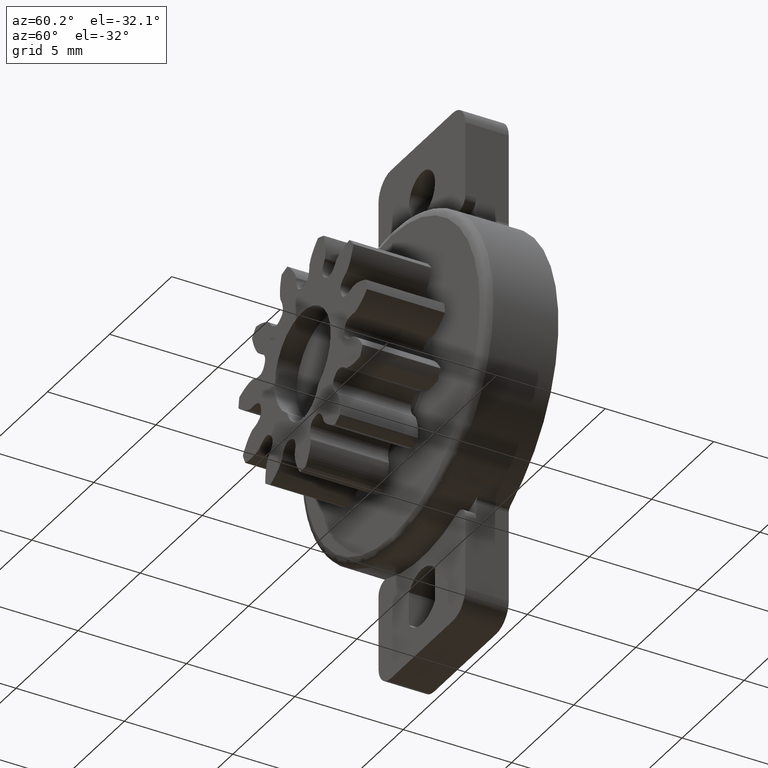
[diagram: clean part render]
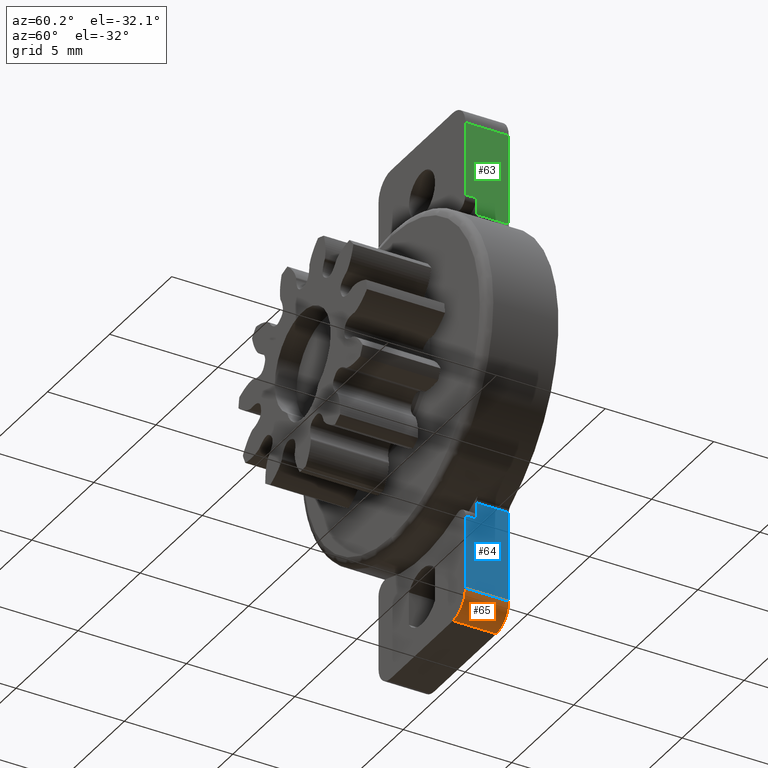
[diagram: same view with three faces highlighted in distinct colors, each labeled with its STEP entity id]
A machine part, auxiliary view with three faces highlighted in distinct colors.
Their STEP definitions:

[orange] entity #65 — the highlighted cylindrical surface (edge-blend (fillet) strip) has radius 1 mm, axis along (-0, 1, 0).
#65=ADVANCED_FACE('',(#941),#940,.T.);
#940=CYLINDRICAL_SURFACE('',#7266,1.00000009537E+00);
#941=FACE_OUTER_BOUND('',#7267,.T.);
#7263=CARTESIAN_POINT('',(2.50000000000E+00,9.98500000000E+02,-1.10000000000E+01));
#7264=DIRECTION('',(-0.00000000000E+00,1.00000000000E+00,0.00000000000E+00));
#7265=DIRECTION('',(-0.00000000000E+00,-0.00000000000E+00,1.00000000000E+00));
#7266=AXIS2_PLACEMENT_3D('',#7263,#7264,#7265);
#7267=EDGE_LOOP('',(#10604,#10605,#10606,#10607));
#10604=ORIENTED_EDGE('',*,*,#14368,.T.);
#10605=ORIENTED_EDGE('',*,*,#14287,.F.);
#10606=ORIENTED_EDGE('',*,*,#14369,.F.);
#10607=ORIENTED_EDGE('',*,*,#14334,.T.);
#14287=EDGE_CURVE('',#16267,#16274,#16275,.T.);
#14334=EDGE_CURVE('',#16595,#16588,#16596,.T.);
#14368=EDGE_CURVE('',#16588,#16274,#16816,.T.);
#14369=EDGE_CURVE('',#16595,#16267,#16822,.T.);
#16267=VERTEX_POINT('',#28957);
#16274=VERTEX_POINT('',#28961);
#16275=CIRCLE('',#28965,1.00000009537E+00);
#16588=VERTEX_POINT('',#29165);
#16595=VERTEX_POINT('',#29169);
#16596=CIRCLE('',#29173,1.00000009537E+00);
#16816=LINE('',#29302,#29303);
#16822=LINE('',#29305,#29306);
#28957=CARTESIAN_POINT('',(2.50000000000E+00,-2.00000000000E+00,-1.20000000000E+01));
#28961=CARTESIAN_POINT('',(3.50000009537E+00,-2.00000000000E+00,-1.09999999476E+01));
#28962=CARTESIAN_POINT('',(2.50000000000E+00,-2.00000000000E+00,-1.10000000000E+01));
#28963=DIRECTION('',(0.00000000000E+00,-1.00000000000E+00,0.00000000000E+00));
#28964=DIRECTION('',(-0.00000000000E+00,-0.00000000000E+00,1.00000000000E+00));
#28965=AXIS2_PLACEMENT_3D('',#28962,#28963,#28964);
#29165=CARTESIAN_POINT('',(3.50000009537E+00,0.00000000000E+00,-1.09999999476E+01));
#29169=CARTESIAN_POINT('',(2.50000000000E+00,0.00000000000E+00,-1.20000000000E+01));
#29170=CARTESIAN_POINT('',(2.50000000000E+00,0.00000000000E+00,-1.10000000000E+01));
#29171=DIRECTION('',(0.00000000000E+00,-1.00000000000E+00,0.00000000000E+00));
#29172=DIRECTION('',(-0.00000000000E+00,-0.00000000000E+00,-1.00000000000E+00));
#29173=AXIS2_PLACEMENT_3D('',#29170,#29171,#29172);
#29302=CARTESIAN_POINT('',(3.50000009537E+00,0.00000000000E+00,-1.09999999476E+01));
#29303=VECTOR('',#29304,2.00000000000E+00);
#29304=DIRECTION('',(0.00000000000E+00,-1.00000000000E+00,0.00000000000E+00));
#29305=CARTESIAN_POINT('',(2.50000000000E+00,0.00000000000E+00,-1.20000000000E+01));
#29306=VECTOR('',#29307,2.00000000000E+00);
#29307=DIRECTION('',(0.00000000000E+00,-1.00000000000E+00,0.00000000000E+00));

[blue] entity #64 — the highlighted planar face has unit normal (1, 0, 0).
#64=ADVANCED_FACE('',(#931),#930,.T.);
#930=PLANE('',#7261);
#931=FACE_OUTER_BOUND('',#7262,.T.);
#7258=CARTESIAN_POINT('',(3.50000000000E+00,-2.20000000000E+00,-6.39293090717E+00));
#7259=DIRECTION('',(1.00000000000E+00,0.00000000000E+00,0.00000000000E+00));
#7260=DIRECTION('',(0.00000000000E+00,0.00000000000E+00,-1.00000000000E+00));
#7261=AXIS2_PLACEMENT_3D('',#7258,#7259,#7260);
#7262=EDGE_LOOP('',(#10598,#10599,#10600,#10601,#10602,#10603));
#10598=ORIENTED_EDGE('',*,*,#14333,.T.);
#10599=ORIENTED_EDGE('',*,*,#14359,.T.);
#10600=ORIENTED_EDGE('',*,*,#14309,.F.);
#10601=ORIENTED_EDGE('',*,*,#14324,.T.);
#10602=ORIENTED_EDGE('',*,*,#14288,.F.);
#10603=ORIENTED_EDGE('',*,*,#14368,.F.);
#14288=EDGE_CURVE('',#16274,#16281,#16282,.T.);
#14309=EDGE_CURVE('',#16418,#16376,#16425,.T.);
#14324=EDGE_CURVE('',#16418,#16281,#16525,.T.);
#14333=EDGE_CURVE('',#16588,#16581,#16589,.T.);
#14359=EDGE_CURVE('',#16581,#16376,#16762,.T.);
#14368=EDGE_CURVE('',#16588,#16274,#16816,.T.);
#16274=VERTEX_POINT('',#28961);
#16281=VERTEX_POINT('',#28966);
#16282=LINE('',#28967,#28968);
#16376=VERTEX_POINT('',#29026);
#16418=VERTEX_POINT('',#29055);
#16425=LINE('',#29060,#29061);
#16525=LINE('',#29124,#29125);
#16581=VERTEX_POINT('',#29160);
#16588=VERTEX_POINT('',#29165);
#16589=LINE('',#29166,#29167);
#16762=LINE('',#29275,#29276);
#16816=LINE('',#29302,#29303);
#28961=CARTESIAN_POINT('',(3.50000009537E+00,-2.00000000000E+00,-1.09999999476E+01));
#28966=CARTESIAN_POINT('',(3.50000000000E+00,-2.00000000000E+00,-7.58711560000E+00));
#28967=CARTESIAN_POINT('',(3.50000000000E+00,-2.00000000000E+00,-1.09999999476E+01));
#28968=VECTOR('',#28969,3.41288434764E+00);
#28969=DIRECTION('',(0.00000000000E+00,0.00000000000E+00,1.00000000000E+00));
#29026=CARTESIAN_POINT('',(3.50000000000E+00,-1.50000000000E+00,-6.81175536540E+00));
#29055=CARTESIAN_POINT('',(3.50000000000E+00,-1.50000000000E+00,-7.58711560000E+00));
#29060=CARTESIAN_POINT('',(3.50000000000E+00,-1.50000000000E+00,-7.58711560000E+00));
#29061=VECTOR('',#29062,7.75360234605E-01);
#29062=DIRECTION('',(0.00000000000E+00,0.00000000000E+00,1.00000000000E+00));
#29124=CARTESIAN_POINT('',(3.50000000000E+00,-1.50000000000E+00,-7.58711560000E+00));
#29125=VECTOR('',#29126,5.00000000000E-01);
#29126=DIRECTION('',(0.00000000000E+00,-1.00000000000E+00,0.00000000000E+00));
#29160=CARTESIAN_POINT('',(3.50000000000E+00,0.00000000000E+00,-6.81175536540E+00));
#29165=CARTESIAN_POINT('',(3.50000009537E+00,0.00000000000E+00,-1.09999999476E+01));
#29166=CARTESIAN_POINT('',(3.50000000000E+00,0.00000000000E+00,-1.09999999476E+01));
#29167=VECTOR('',#29168,4.18824458224E+00);
#29168=DIRECTION('',(0.00000000000E+00,0.00000000000E+00,1.00000000000E+00));
#29275=CARTESIAN_POINT('',(3.50000000000E+00,0.00000000000E+00,-6.81175536540E+00));
#29276=VECTOR('',#29277,1.50000000000E+00);
#29277=DIRECTION('',(0.00000000000E+00,-1.00000000000E+00,0.00000000000E+00));
#29302=CARTESIAN_POINT('',(3.50000009537E+00,0.00000000000E+00,-1.09999999476E+01));
#29303=VECTOR('',#29304,2.00000000000E+00);
#29304=DIRECTION('',(0.00000000000E+00,-1.00000000000E+00,0.00000000000E+00));

[green] entity #63 — the highlighted planar face has unit normal (1, 0, 0).
#63=ADVANCED_FACE('',(#921),#920,.T.);
#920=PLANE('',#7256);
#921=FACE_OUTER_BOUND('',#7257,.T.);
#7253=CARTESIAN_POINT('',(3.50000000000E+00,-2.20000000000E+00,1.14188244635E+01));
#7254=DIRECTION('',(1.00000000000E+00,0.00000000000E+00,0.00000000000E+00));
#7255=DIRECTION('',(0.00000000000E+00,0.00000000000E+00,-1.00000000000E+00));
#7256=AXIS2_PLACEMENT_3D('',#7253,#7254,#7255);
#7257=EDGE_LOOP('',(#10592,#10593,#10594,#10595,#10596,#10597));
#10592=ORIENTED_EDGE('',*,*,#14347,.F.);
#10593=ORIENTED_EDGE('',*,*,#14360,.T.);
#10594=ORIENTED_EDGE('',*,*,#14329,.T.);
#10595=ORIENTED_EDGE('',*,*,#14366,.T.);
#10596=ORIENTED_EDGE('',*,*,#14279,.F.);
#10597=ORIENTED_EDGE('',*,*,#14367,.F.);
#14279=EDGE_CURVE('',#16211,#16218,#16219,.T.);
#14329=EDGE_CURVE('',#16560,#16553,#16561,.T.);
#14347=EDGE_CURVE('',#16679,#16686,#16687,.T.);
#14360=EDGE_CURVE('',#16679,#16560,#16768,.T.);
#14366=EDGE_CURVE('',#16553,#16218,#16804,.T.);
#14367=EDGE_CURVE('',#16686,#16211,#16810,.T.);
#16211=VERTEX_POINT('',#28920);
#16218=VERTEX_POINT('',#28925);
#16219=LINE('',#28926,#28927);
#16553=VERTEX_POINT('',#29141);
#16560=VERTEX_POINT('',#29146);
#16561=LINE('',#29147,#29148);
#16679=VERTEX_POINT('',#29227);
#16686=VERTEX_POINT('',#29232);
#16687=LINE('',#29233,#29234);
#16768=LINE('',#29278,#29279);
#16804=LINE('',#29296,#29297);
#16810=LINE('',#29299,#29300);
#28920=CARTESIAN_POINT('',(3.50000000000E+00,-2.00000000000E+00,7.58711540000E+00));
#28925=CARTESIAN_POINT('',(3.50000000000E+00,-2.00000000000E+00,1.10000000000E+01));
#28926=CARTESIAN_POINT('',(3.50000000000E+00,-2.00000000000E+00,7.58711540000E+00));
#28927=VECTOR('',#28928,3.41288460000E+00);
#28928=DIRECTION('',(0.00000000000E+00,0.00000000000E+00,1.00000000000E+00));
#29141=CARTESIAN_POINT('',(3.50000000000E+00,0.00000000000E+00,1.10000000000E+01));
#29146=CARTESIAN_POINT('',(3.50000000000E+00,0.00000000000E+00,6.81175536540E+00));
#29147=CARTESIAN_POINT('',(3.50000000000E+00,0.00000000000E+00,6.81175536540E+00));
#29148=VECTOR('',#29149,4.18824463460E+00);
#29149=DIRECTION('',(0.00000000000E+00,0.00000000000E+00,1.00000000000E+00));
#29227=CARTESIAN_POINT('',(3.50000000000E+00,-1.50000000000E+00,6.81175536540E+00));
#29232=CARTESIAN_POINT('',(3.50000000000E+00,-1.50000000000E+00,7.58711540000E+00));
#29233=CARTESIAN_POINT('',(3.50000000000E+00,-1.50000000000E+00,6.81175536540E+00));
#29234=VECTOR('',#29235,7.75360034605E-01);
#29235=DIRECTION('',(0.00000000000E+00,0.00000000000E+00,1.00000000000E+00));
#29278=CARTESIAN_POINT('',(3.50000000000E+00,-1.50000000000E+00,6.81175536540E+00));
#29279=VECTOR('',#29280,1.50000000000E+00);
#29280=DIRECTION('',(0.00000000000E+00,1.00000000000E+00,0.00000000000E+00));
#29296=CARTESIAN_POINT('',(3.50000000000E+00,0.00000000000E+00,1.10000000000E+01));
#29297=VECTOR('',#29298,2.00000000000E+00);
#29298=DIRECTION('',(0.00000000000E+00,-1.00000000000E+00,0.00000000000E+00));
#29299=CARTESIAN_POINT('',(3.50000000000E+00,-1.50000000000E+00,7.58711540000E+00));
#29300=VECTOR('',#29301,5.00000000000E-01);
#29301=DIRECTION('',(0.00000000000E+00,-1.00000000000E+00,0.00000000000E+00));